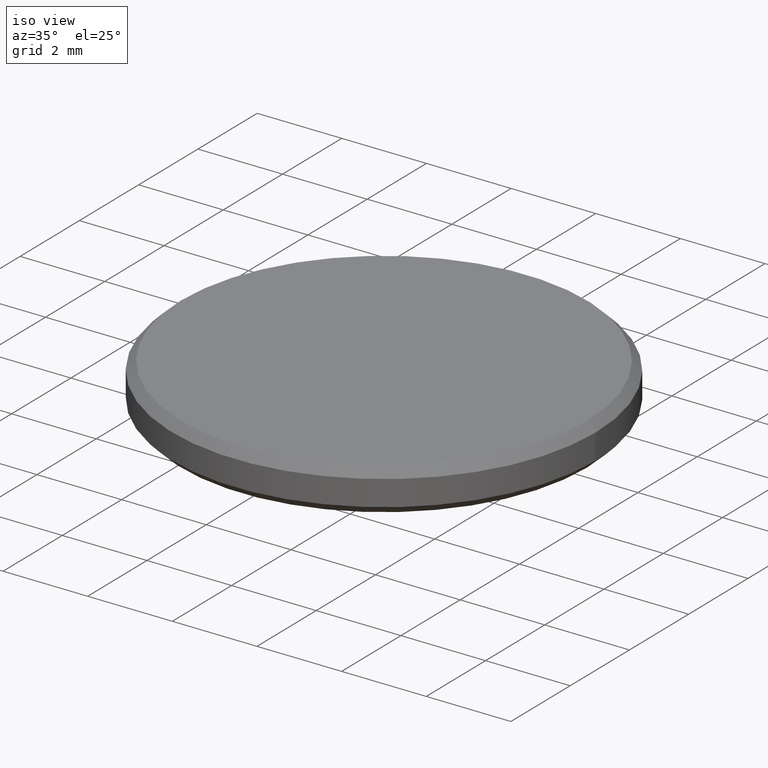
[diagram: clean part render]
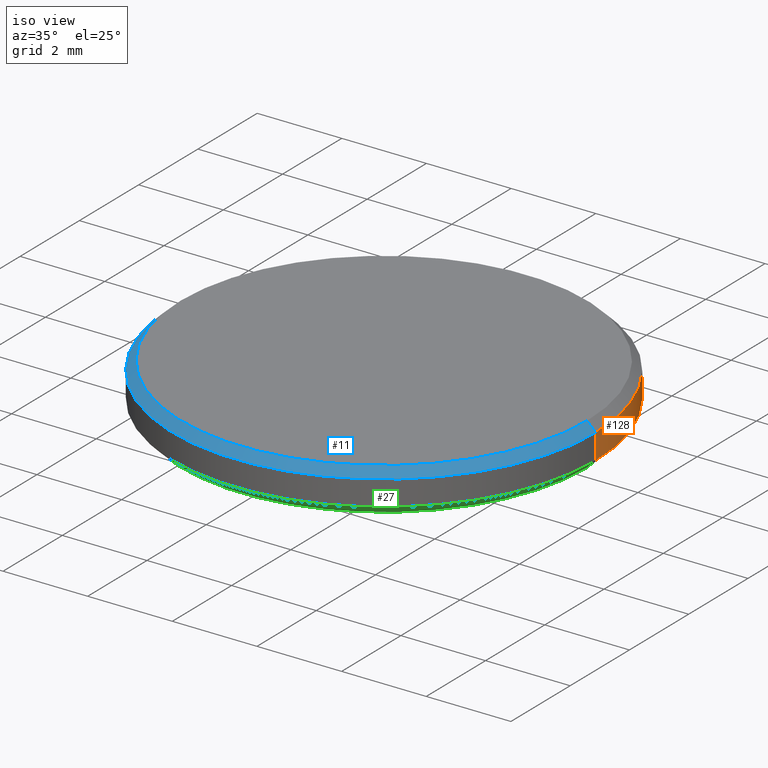
[diagram: same view with three faces highlighted in distinct colors, each labeled with its STEP entity id]
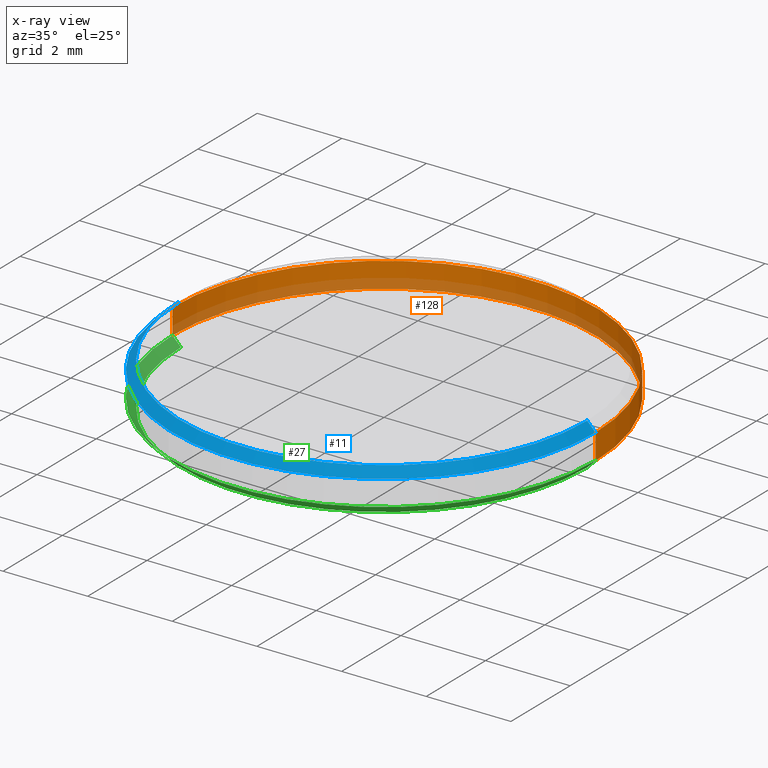
[diagram: x-ray of the same camera — body ghosted, the three highlighted faces saturated]
A machine part, iso view with three faces highlighted in distinct colors.
The next image is the same camera in x-ray (body ghosted, the three faces saturated) — at least one of them is partly hidden behind the body in this view.
Their STEP definitions:

[orange] entity #128 — the highlighted cylindrical surface (partial cylindrical patch) has radius 5 mm, axis along (-0, -0, -1).
#3 = CARTESIAN_POINT ( 'NONE',  ( 5.000000000000000000, 6.123233995736766282E-16, 1.000000000000000000 ) ) ;
#19 = DIRECTION ( 'NONE',  ( -0.000000000000000000, -0.000000000000000000, -1.000000000000000000 ) ) ;
#23 = DIRECTION ( 'NONE',  ( -1.000000000000000000, 0.000000000000000000, 0.000000000000000000 ) ) ;
#26 = DIRECTION ( 'NONE',  ( 0.000000000000000000, 0.000000000000000000, -1.000000000000000000 ) ) ;
#39 = VERTEX_POINT ( 'NONE', #150 ) ;
#44 = AXIS2_PLACEMENT_3D ( 'NONE', #164, #103, #23 ) ;
#51 = ORIENTED_EDGE ( 'NONE', *, *, #210, .T. ) ;
#66 = AXIS2_PLACEMENT_3D ( 'NONE', #140, #26, #179 ) ;
#81 = ORIENTED_EDGE ( 'NONE', *, *, #86, .F. ) ;
#86 = EDGE_CURVE ( 'NONE', #173, #111, #107, .T. ) ;
#88 = EDGE_CURVE ( 'NONE', #135, #39, #199, .T. ) ;
#89 = VECTOR ( 'NONE', #19, 1000.000000000000000 ) ;
#93 = DIRECTION ( 'NONE',  ( -0.000000000000000000, -0.000000000000000000, -1.000000000000000000 ) ) ;
#96 = EDGE_LOOP ( 'NONE', ( #51, #219, #113, #81 ) ) ;
#103 = DIRECTION ( 'NONE',  ( -0.000000000000000000, -0.000000000000000000, -1.000000000000000000 ) ) ;
#107 = LINE ( 'NONE', #185, #144 ) ;
#111 = VERTEX_POINT ( 'NONE', #196 ) ;
#113 = ORIENTED_EDGE ( 'NONE', *, *, #116, .T. ) ;
#116 = EDGE_CURVE ( 'NONE', #39, #111, #183, .T. ) ;
#124 = CARTESIAN_POINT ( 'NONE',  ( -5.000000000000000000, 0.000000000000000000, 0.8000000000000012657 ) ) ;
#126 = CYLINDRICAL_SURFACE ( 'NONE', #44, 5.000000000000000000 ) ;
#128 = ADVANCED_FACE ( 'NONE', ( #158 ), #126, .T. ) ;
#135 = VERTEX_POINT ( 'NONE', #160 ) ;
#139 = DIRECTION ( 'NONE',  ( -0.000000000000000000, -0.000000000000000000, 1.000000000000000000 ) ) ;
#140 = CARTESIAN_POINT ( 'NONE',  ( 0.000000000000000000, 0.000000000000000000, 0.8000000000000012657 ) ) ;
#144 = VECTOR ( 'NONE', #93, 1000.000000000000000 ) ;
#150 = CARTESIAN_POINT ( 'NONE',  ( 5.000000000000000000, 6.123233995736766282E-16, 0.1999999999999996503 ) ) ;
#156 = DIRECTION ( 'NONE',  ( 1.000000000000000000, 0.000000000000000000, 0.000000000000000000 ) ) ;
#158 = FACE_OUTER_BOUND ( 'NONE', #96, .T. ) ;
#160 = CARTESIAN_POINT ( 'NONE',  ( 5.000000000000000000, 6.123233995736766282E-16, 0.8000000000000012657 ) ) ;
#164 = CARTESIAN_POINT ( 'NONE',  ( 0.000000000000000000, 0.000000000000000000, 1.000000000000000000 ) ) ;
#173 = VERTEX_POINT ( 'NONE', #124 ) ;
#176 = CIRCLE ( 'NONE', #66, 5.000000000000000000 ) ;
#179 = DIRECTION ( 'NONE',  ( 1.000000000000000000, 0.000000000000000000, 0.000000000000000000 ) ) ;
#183 = CIRCLE ( 'NONE', #193, 5.000000000000000000 ) ;
#185 = CARTESIAN_POINT ( 'NONE',  ( -5.000000000000000000, 0.000000000000000000, 1.000000000000000000 ) ) ;
#193 = AXIS2_PLACEMENT_3D ( 'NONE', #214, #139, #156 ) ;
#196 = CARTESIAN_POINT ( 'NONE',  ( -5.000000000000000000, 0.000000000000000000, 0.1999999999999996503 ) ) ;
#199 = LINE ( 'NONE', #3, #89 ) ;
#210 = EDGE_CURVE ( 'NONE', #173, #135, #176, .T. ) ;
#214 = CARTESIAN_POINT ( 'NONE',  ( 0.000000000000000000, 0.000000000000000000, 0.1999999999999996503 ) ) ;
#219 = ORIENTED_EDGE ( 'NONE', *, *, #88, .T. ) ;

[blue] entity #11 — the highlighted conical surface has half-angle 45 deg.
#1 = EDGE_LOOP ( 'NONE', ( #84, #239, #170, #235 ) ) ;
#8 = CARTESIAN_POINT ( 'NONE',  ( 0.000000000000000000, 0.000000000000000000, 0.8000000000000012657 ) ) ;
#11 = ADVANCED_FACE ( 'NONE', ( #138 ), #142, .T. ) ;
#13 = LINE ( 'NONE', #78, #231 ) ;
#24 = VECTOR ( 'NONE', #91, 1000.000000000000114 ) ;
#30 = AXIS2_PLACEMENT_3D ( 'NONE', #154, #221, #115 ) ;
#46 = LINE ( 'NONE', #194, #24 ) ;
#48 = DIRECTION ( 'NONE',  ( 1.000000000000000000, 0.000000000000000000, 0.000000000000000000 ) ) ;
#54 = DIRECTION ( 'NONE',  ( -0.7071067811865460184, 0.000000000000000000, -0.7071067811865489050 ) ) ;
#65 = CIRCLE ( 'NONE', #152, 4.800000000000002487 ) ;
#67 = EDGE_CURVE ( 'NONE', #79, #173, #13, .T. ) ;
#78 = CARTESIAN_POINT ( 'NONE',  ( -4.800000000000002487, 0.000000000000000000, 1.000000000000000000 ) ) ;
#79 = VERTEX_POINT ( 'NONE', #136 ) ;
#84 = ORIENTED_EDGE ( 'NONE', *, *, #106, .F. ) ;
#87 = DIRECTION ( 'NONE',  ( 0.000000000000000000, 0.000000000000000000, 1.000000000000000000 ) ) ;
#91 = DIRECTION ( 'NONE',  ( 0.7071067811865460184, 8.659560562354913137E-17, -0.7071067811865489050 ) ) ;
#92 = EDGE_CURVE ( 'NONE', #135, #173, #119, .T. ) ;
#102 = AXIS2_PLACEMENT_3D ( 'NONE', #8, #192, #48 ) ;
#106 = EDGE_CURVE ( 'NONE', #178, #135, #46, .T. ) ;
#115 = DIRECTION ( 'NONE',  ( -1.000000000000000000, 0.000000000000000000, 0.000000000000000000 ) ) ;
#119 = CIRCLE ( 'NONE', #102, 5.000000000000000000 ) ;
#124 = CARTESIAN_POINT ( 'NONE',  ( -5.000000000000000000, 0.000000000000000000, 0.8000000000000012657 ) ) ;
#135 = VERTEX_POINT ( 'NONE', #160 ) ;
#136 = CARTESIAN_POINT ( 'NONE',  ( -4.800000000000002487, 0.000000000000000000, 1.000000000000000000 ) ) ;
#138 = FACE_OUTER_BOUND ( 'NONE', #1, .T. ) ;
#142 = CONICAL_SURFACE ( 'NONE', #30, 4.800000000000002487, 0.7853981633974461696 ) ;
#152 = AXIS2_PLACEMENT_3D ( 'NONE', #209, #87, #227 ) ;
#154 = CARTESIAN_POINT ( 'NONE',  ( 0.000000000000000000, 0.000000000000000000, 1.000000000000000000 ) ) ;
#160 = CARTESIAN_POINT ( 'NONE',  ( 5.000000000000000000, 6.123233995736766282E-16, 0.8000000000000012657 ) ) ;
#163 = CARTESIAN_POINT ( 'NONE',  ( 4.800000000000002487, 6.000769315822031726E-16, 1.000000000000000000 ) ) ;
#170 = ORIENTED_EDGE ( 'NONE', *, *, #67, .T. ) ;
#173 = VERTEX_POINT ( 'NONE', #124 ) ;
#178 = VERTEX_POINT ( 'NONE', #163 ) ;
#192 = DIRECTION ( 'NONE',  ( 0.000000000000000000, 0.000000000000000000, -1.000000000000000000 ) ) ;
#194 = CARTESIAN_POINT ( 'NONE',  ( 4.800000000000002487, 5.878304635907297169E-16, 1.000000000000000000 ) ) ;
#209 = CARTESIAN_POINT ( 'NONE',  ( 0.000000000000000000, 0.000000000000000000, 1.000000000000000000 ) ) ;
#221 = DIRECTION ( 'NONE',  ( 0.000000000000000000, 0.000000000000000000, -1.000000000000000000 ) ) ;
#224 = EDGE_CURVE ( 'NONE', #79, #178, #65, .T. ) ;
#227 = DIRECTION ( 'NONE',  ( 1.000000000000000000, 0.000000000000000000, 0.000000000000000000 ) ) ;
#231 = VECTOR ( 'NONE', #54, 1000.000000000000114 ) ;
#235 = ORIENTED_EDGE ( 'NONE', *, *, #92, .F. ) ;
#239 = ORIENTED_EDGE ( 'NONE', *, *, #224, .F. ) ;

[green] entity #27 — the highlighted conical surface has half-angle 45 deg.
#2 = DIRECTION ( 'NONE',  ( -0.000000000000000000, -0.000000000000000000, 1.000000000000000000 ) ) ;
#12 = AXIS2_PLACEMENT_3D ( 'NONE', #232, #73, #41 ) ;
#15 = ORIENTED_EDGE ( 'NONE', *, *, #189, .T. ) ;
#27 = ADVANCED_FACE ( 'NONE', ( #168 ), #228, .T. ) ;
#32 = VECTOR ( 'NONE', #195, 1000.000000000000000 ) ;
#33 = CARTESIAN_POINT ( 'NONE',  ( 0.000000000000000000, 0.000000000000000000, 0.000000000000000000 ) ) ;
#34 = ORIENTED_EDGE ( 'NONE', *, *, #180, .F. ) ;
#37 = VERTEX_POINT ( 'NONE', #57 ) ;
#39 = VERTEX_POINT ( 'NONE', #150 ) ;
#41 = DIRECTION ( 'NONE',  ( 1.000000000000000000, 0.000000000000000000, 0.000000000000000000 ) ) ;
#52 = EDGE_CURVE ( 'NONE', #37, #95, #225, .T. ) ;
#57 = CARTESIAN_POINT ( 'NONE',  ( 4.799999999999999822, 0.000000000000000000, 0.000000000000000000 ) ) ;
#61 = DIRECTION ( 'NONE',  ( -0.7071067811865490160, 8.659560562354950115E-17, 0.7071067811865459074 ) ) ;
#62 = CARTESIAN_POINT ( 'NONE',  ( -4.799999999999999822, 6.000769315822029754E-16, 0.000000000000000000 ) ) ;
#68 = LINE ( 'NONE', #101, #32 ) ;
#73 = DIRECTION ( 'NONE',  ( -0.000000000000000000, -0.000000000000000000, 1.000000000000000000 ) ) ;
#76 = VECTOR ( 'NONE', #61, 1000.000000000000000 ) ;
#83 = DIRECTION ( 'NONE',  ( 1.000000000000000000, 0.000000000000000000, 0.000000000000000000 ) ) ;
#85 = ORIENTED_EDGE ( 'NONE', *, *, #52, .F. ) ;
#95 = VERTEX_POINT ( 'NONE', #62 ) ;
#100 = CARTESIAN_POINT ( 'NONE',  ( -5.000000000000000000, 6.123233995736765296E-16, 0.1999999999999996503 ) ) ;
#101 = CARTESIAN_POINT ( 'NONE',  ( 5.000000000000000000, 0.000000000000000000, 0.1999999999999996503 ) ) ;
#109 = CIRCLE ( 'NONE', #125, 5.000000000000000000 ) ;
#111 = VERTEX_POINT ( 'NONE', #196 ) ;
#121 = EDGE_CURVE ( 'NONE', #111, #39, #109, .T. ) ;
#125 = AXIS2_PLACEMENT_3D ( 'NONE', #175, #2, #83 ) ;
#130 = DIRECTION ( 'NONE',  ( -0.000000000000000000, -0.000000000000000000, -1.000000000000000000 ) ) ;
#134 = DIRECTION ( 'NONE',  ( 1.000000000000000000, 0.000000000000000000, 0.000000000000000000 ) ) ;
#137 = AXIS2_PLACEMENT_3D ( 'NONE', #33, #130, #134 ) ;
#141 = LINE ( 'NONE', #100, #76 ) ;
#150 = CARTESIAN_POINT ( 'NONE',  ( 5.000000000000000000, 6.123233995736766282E-16, 0.1999999999999996503 ) ) ;
#168 = FACE_OUTER_BOUND ( 'NONE', #204, .T. ) ;
#175 = CARTESIAN_POINT ( 'NONE',  ( 0.000000000000000000, 0.000000000000000000, 0.1999999999999996503 ) ) ;
#180 = EDGE_CURVE ( 'NONE', #95, #111, #141, .T. ) ;
#189 = EDGE_CURVE ( 'NONE', #37, #39, #68, .T. ) ;
#195 = DIRECTION ( 'NONE',  ( 0.7071067811865490160, 0.000000000000000000, 0.7071067811865459074 ) ) ;
#196 = CARTESIAN_POINT ( 'NONE',  ( -5.000000000000000000, 0.000000000000000000, 0.1999999999999996503 ) ) ;
#202 = ORIENTED_EDGE ( 'NONE', *, *, #121, .F. ) ;
#204 = EDGE_LOOP ( 'NONE', ( #34, #85, #15, #202 ) ) ;
#225 = CIRCLE ( 'NONE', #137, 4.799999999999999822 ) ;
#228 = CONICAL_SURFACE ( 'NONE', #12, 5.000000000000000000, 0.7853981633974503884 ) ;
#232 = CARTESIAN_POINT ( 'NONE',  ( 0.000000000000000000, 0.000000000000000000, 0.1999999999999996503 ) ) ;